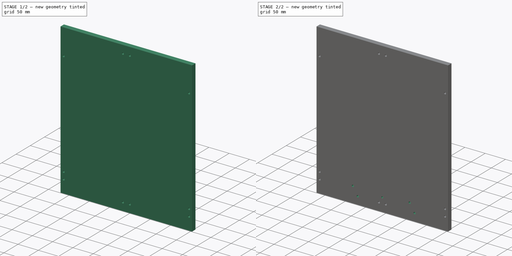
[diagram: build sequence overview — one tinted view per stage of 2, left to right]
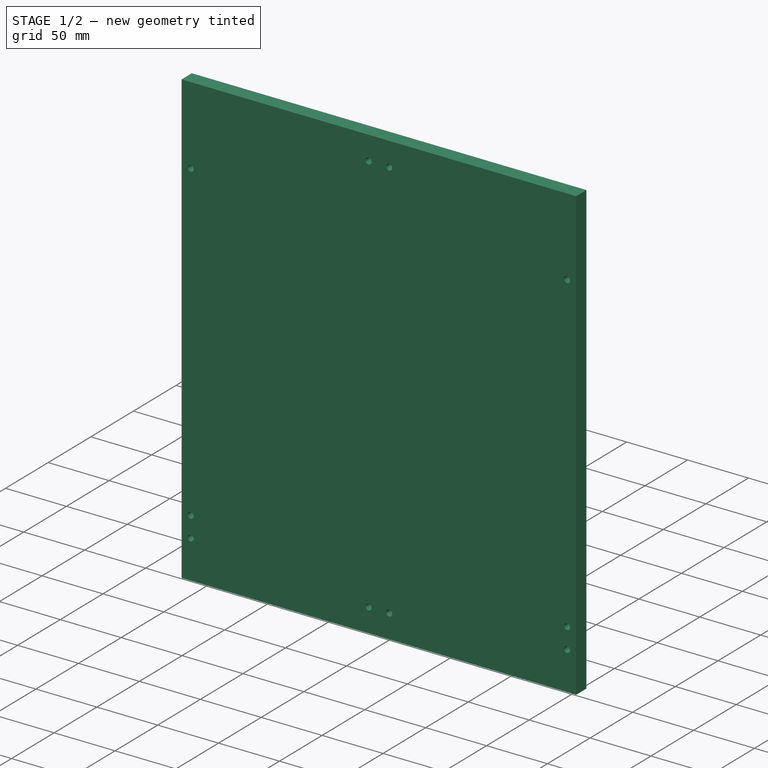
[diagram: stage 1 of 2 — iso view after this stage's code; geometry added in this stage tinted green]
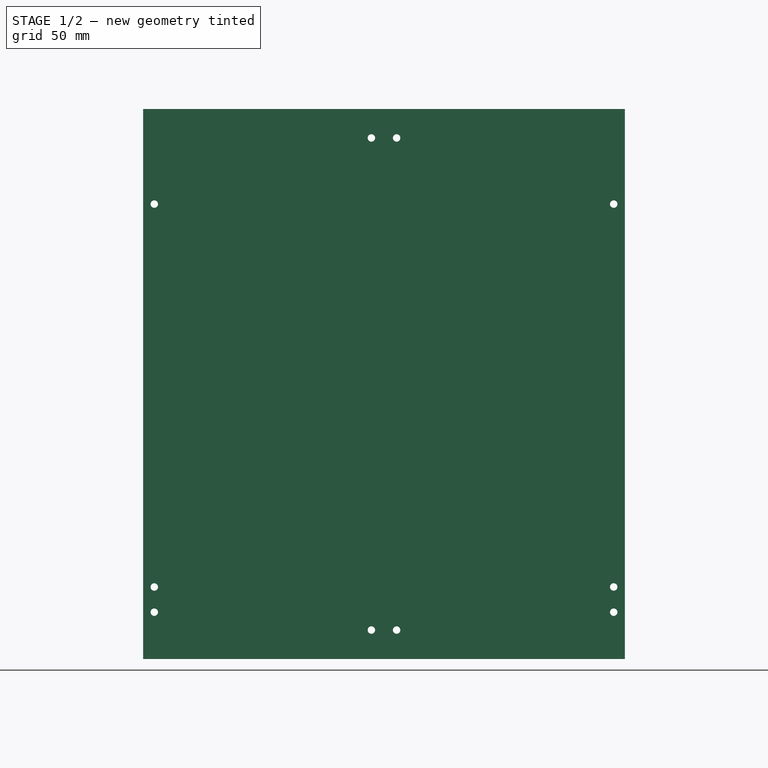
[diagram: stage 1 of 2 — front view after this stage's code; geometry added in this stage tinted green]
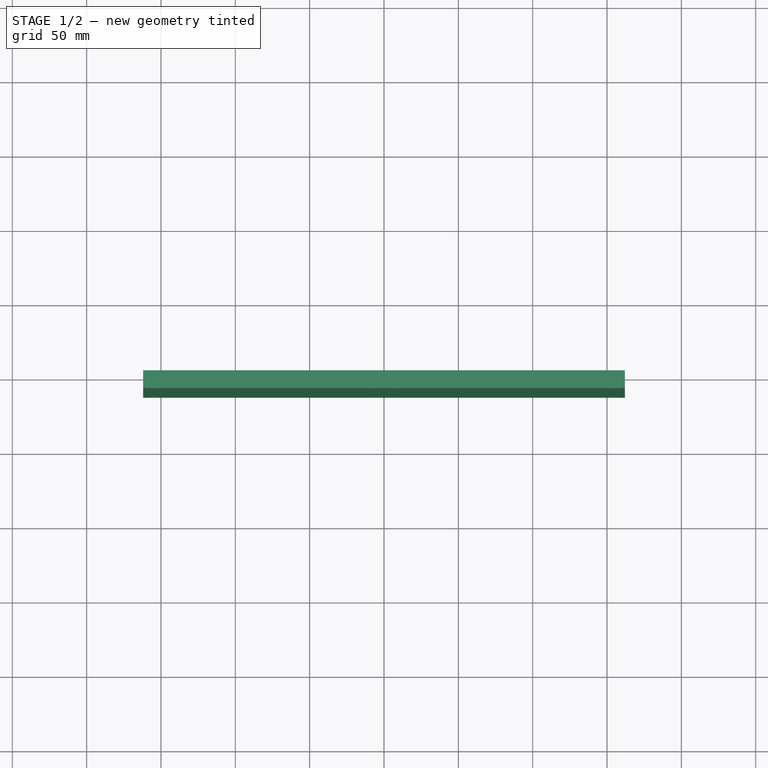
[diagram: stage 1 of 2 — top view after this stage's code; geometry added in this stage tinted green]
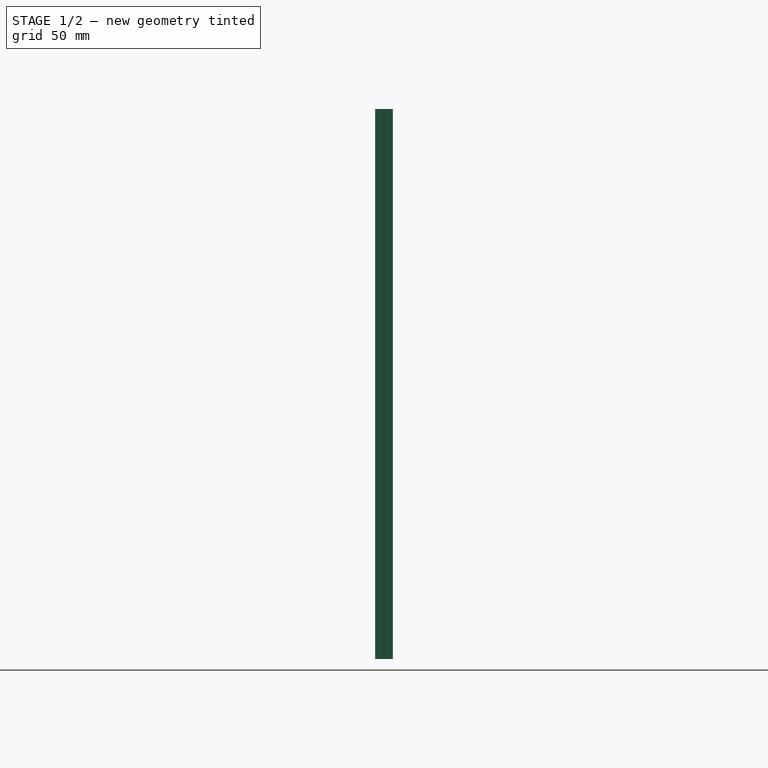
[diagram: stage 1 of 2 — right view after this stage's code; geometry added in this stage tinted green]
FCSTD DOCUMENT  (FreeCAD 0.15R4671 (Git))
Label: Gehaeuse - Rueckwand
License: All rights reserved
LicenseURL: http://de.wikipedia.org/wiki/Alle_Rechte_vorbehalten
objects: Drawing::FeatureView×18, Sketcher::SketchObject×3, PartDesign::Pocket×2, PartDesign::Pad×1, Drawing::FeatureViewPart×1, Drawing::FeaturePage×1
note: 9 computed .brp shape members not serialized (recipe doc carries the construction recipe); baked Part::Feature solids carry a one-line shape summary decoded from their .brp

FEATURE [Sketcher::SketchObject] Sketch
  Placement = pos=(0,0,0) rot=(1,0,0;1.5708rad)
  sketch-geometry (4):
    g0: LineSegment StartX=-162 StartY=370 StartZ=0 EndX=162 EndY=370 EndZ=0
    g1: LineSegment StartX=162 StartY=370 StartZ=0 EndX=162 EndY=0 EndZ=0
    g2: LineSegment StartX=162 StartY=0 StartZ=0 EndX=-162 EndY=0 EndZ=0
    g3: LineSegment StartX=-162 StartY=0 StartZ=0 EndX=-162 EndY=370 EndZ=0
  constraints (12):
    c: Coincident(g0,g1)
    c: Coincident(g1,g2)
    c: Coincident(g2,g3)
    c: Coincident(g3,g0)
    c: Horizontal(g0)
    c: Horizontal(g2)
    c: Vertical(g1)
    c: Vertical(g3)
    c: Symmetric(g1,g2,g-2)
    c: PointOnObject(g-1,g2)
    c: DistanceY(g1) = -370
    c: DistanceX(g0) = 324
FEATURE [PartDesign::Pad] Pad
  Length = 12
  Length2 = 100
  Placement = pos=(0,0,0) rot=(1,0,0;1.5708rad)
  Sketch = -> Sketch
  Type = 0
FEATURE [Sketcher::SketchObject] Sketch001
  ExternalGeometry = -> [Pad]
  Placement = pos=(0,-12,0) rot=(1,0,0;1.5708rad)
  Support = -> Pad [Face6]
  sketch-geometry (19):
    g0: LineSegment [constr] StartX=-154.5 StartY=306 StartZ=0 EndX=154.5 EndY=306 EndZ=0
    g1: LineSegment [constr] StartX=154.5 StartY=306 StartZ=0 EndX=154.5 EndY=31.525 EndZ=0
    g2: LineSegment [constr] StartX=154.5 StartY=31.525 StartZ=0 EndX=-154.5 EndY=31.525 EndZ=0
    g3: LineSegment [constr] StartX=-154.5 StartY=31.525 StartZ=0 EndX=-154.5 EndY=306 EndZ=0
    g4: LineSegment [constr] StartX=-8.475 StartY=350.5 StartZ=0 EndX=8.475 EndY=350.5 EndZ=0
    g5: LineSegment [constr] StartX=8.475 StartY=350.5 StartZ=0 EndX=8.475 EndY=19.5 EndZ=0
    g6: LineSegment [constr] StartX=8.475 StartY=19.5 StartZ=0 EndX=-8.475 EndY=19.5 EndZ=0
    g7: LineSegment [constr] StartX=-8.475 StartY=19.5 StartZ=0 EndX=-8.475 EndY=350.5 EndZ=0
    g8: LineSegment [constr] StartX=-154.5 StartY=48.475 StartZ=0 EndX=154.5 EndY=48.475 EndZ=0
    g9: Circle CenterX=-154.5 CenterY=31.525 CenterZ=0 NormalX=0 NormalY=0 NormalZ=1 Radius=2.5
    g10: Circle CenterX=-154.5 CenterY=48.475 CenterZ=0 NormalX=0 NormalY=0 NormalZ=1 Radius=2.5
    g11: Circle CenterX=-154.5 CenterY=306 CenterZ=0 NormalX=0 NormalY=0 NormalZ=1 Radius=2.5
    g12: Circle CenterX=-8.475 CenterY=350.5 CenterZ=0 NormalX=0 NormalY=0 NormalZ=1 Radius=2.5
    g13: Circle CenterX=8.475 CenterY=350.5 CenterZ=0 NormalX=0 NormalY=0 NormalZ=1 Radius=2.5
    g14: Circle CenterX=154.5 CenterY=306 CenterZ=0 NormalX=0 NormalY=0 NormalZ=1 Radius=2.5
    g15: Circle CenterX=154.5 CenterY=48.475 CenterZ=0 NormalX=0 NormalY=0 NormalZ=1 Radius=2.5
    g16: Circle CenterX=154.5 CenterY=31.525 CenterZ=0 NormalX=0 NormalY=0 NormalZ=1 Radius=2.5
    g17: Circle CenterX=8.475 CenterY=19.5 CenterZ=0 NormalX=0 NormalY=0 NormalZ=1 Radius=2.5
    g18: Circle CenterX=-8.475 CenterY=19.5 CenterZ=0 NormalX=0 NormalY=0 NormalZ=1 Radius=2.5
  constraints (48):
    c: Coincident(g0,g1)
    c: Coincident(g1,g2)
    c: Coincident(g2,g3)
    c: Coincident(g3,g0)
    c: Horizontal(g0)
    c: Horizontal(g2)
    c: Vertical(g1)
    c: Vertical(g3)
    c: Coincident(g4,g5)
    c: Coincident(g5,g6)
    c: Coincident(g6,g7)
    c: Coincident(g7,g4)
    c: Horizontal(g4)
    c: Horizontal(g6)
    c: Vertical(g5)
    c: Vertical(g7)
    c: Symmetric(g6,g5,g-2)
    c: Symmetric(g0,g0,g-2)
    c: DistanceX(g6,g-3) = -153.525
    c: DistanceX(g2,g-3) = -7.5
    c: DistanceY(g-3,g6) = 19.5
    c: DistanceY(g-3,g2) = 31.525
    c: PointOnObject(g8,g3)
    c: PointOnObject(g8,g1)
    c: Horizontal(g8)
    c: DistanceY(g-3,g8) = 48.475
    c: DistanceY(g0,g-3) = -306
    c: DistanceY(g-3,g4) = 350.5
    c: Coincident(g9,g2)
    c: Coincident(g10,g8)
    c: Coincident(g11,g0)
    c: Coincident(g12,g4)
    c: Coincident(g13,g4)
    c: Coincident(g14,g0)
    c: Coincident(g15,g8)
    c: Coincident(g16,g1)
    c: Coincident(g17,g5)
    c: Coincident(g18,g6)
    c: Radius(g9) = 2.5
    c: Equal(g9,g10)
    c: Equal(g9,g11)
    c: Equal(g9,g13)
    c: Equal(g9,g12)
    c: Equal(g9,g14)
    c: Equal(g9,g15)
    c: Equal(g9,g16)
    c: Equal(g9,g18)
    c: Equal(g9,g17)
FEATURE [PartDesign::Pocket] Pocket
  Length = 5
  Placement = pos=(0,0,0) rot=(1,0,0;1.5708rad)
  Sketch = -> Sketch001
  Type = 1
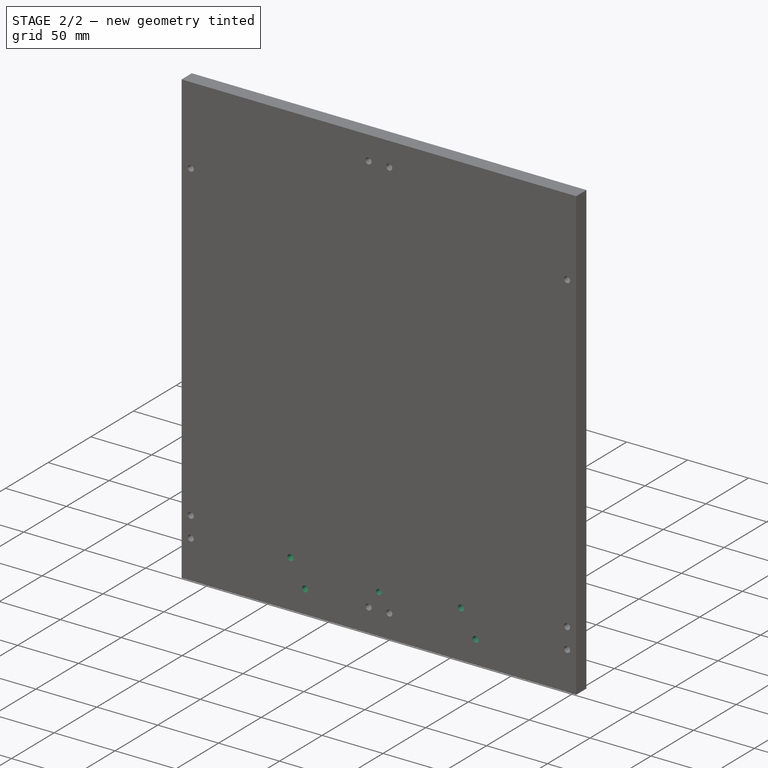
[diagram: stage 2 of 2 — iso view after this stage's code; geometry added in this stage tinted green]
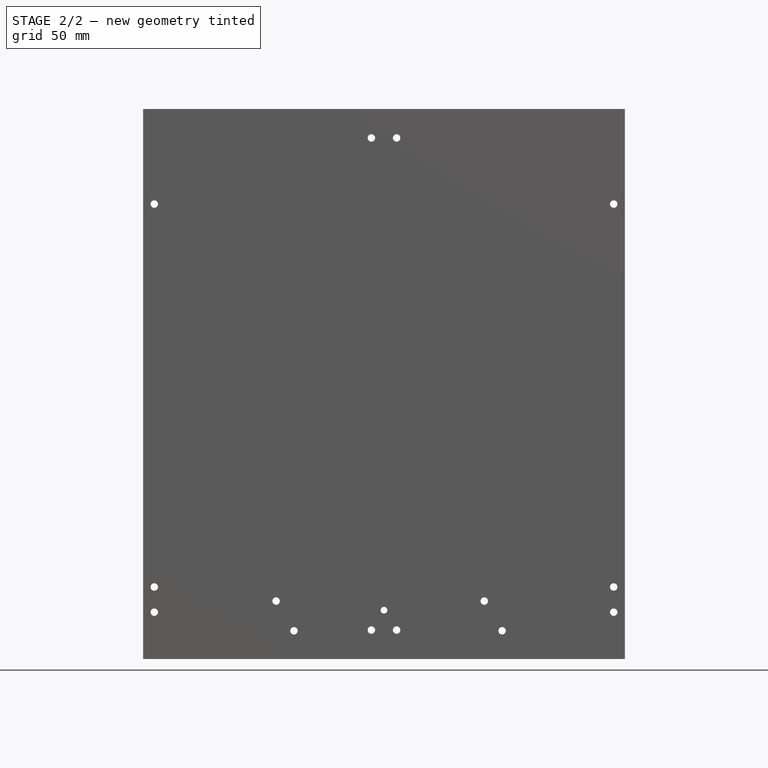
[diagram: stage 2 of 2 — front view after this stage's code; geometry added in this stage tinted green]
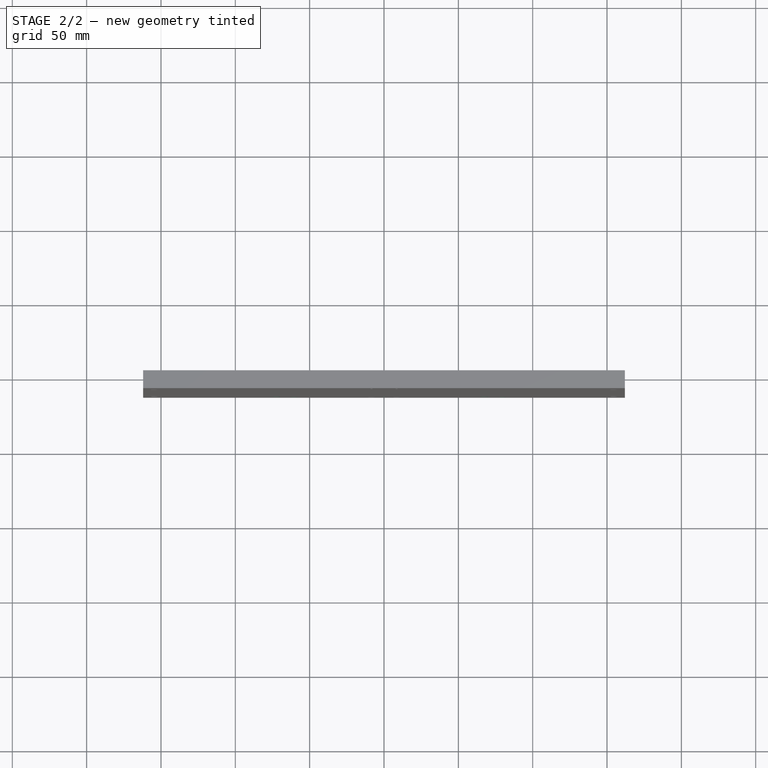
[diagram: stage 2 of 2 — top view after this stage's code; geometry added in this stage tinted green]
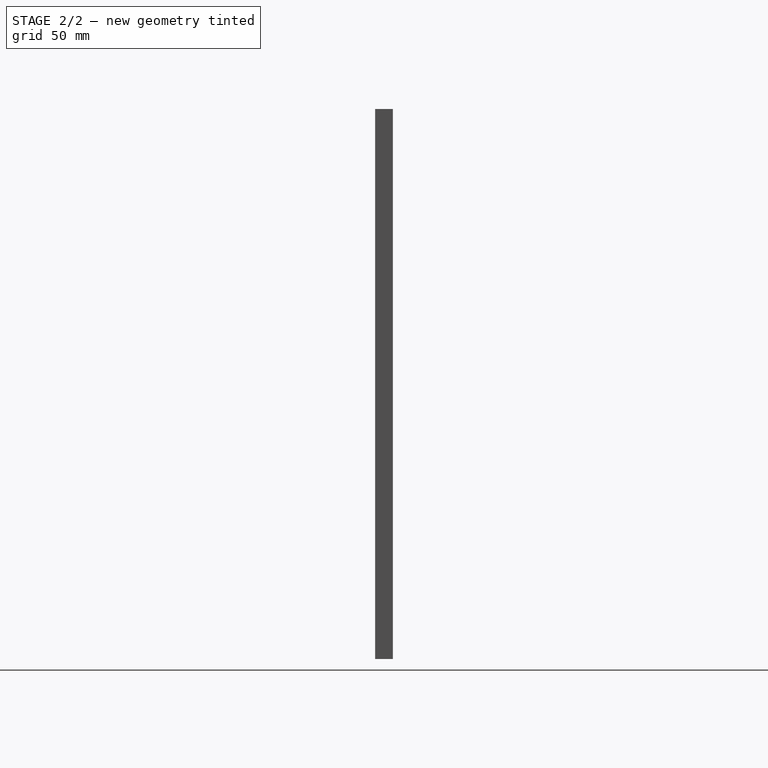
[diagram: stage 2 of 2 — right view after this stage's code; geometry added in this stage tinted green]
FEATURE [Sketcher::SketchObject] Sketch002
  ExternalGeometry = -> [Pocket]
  Placement = pos=(0,0,0) rot=(-1,0,0;1.5708rad)
  Support = -> Pocket [Face4]
  sketch-geometry (9):
    g0: LineSegment [constr] StartX=-72.55 StartY=-19 StartZ=0 EndX=79.45 EndY=-19 EndZ=0
    g1: LineSegment [constr] StartX=79.45 StartY=-19 StartZ=0 EndX=79.45 EndY=-39 EndZ=0
    g2: LineSegment [constr] StartX=79.45 StartY=-39 StartZ=0 EndX=-72.55 EndY=-39 EndZ=0
    g3: LineSegment [constr] StartX=-72.55 StartY=-39 StartZ=0 EndX=-72.55 EndY=-19 EndZ=0
    g4: Circle CenterX=-72.55 CenterY=-39 CenterZ=0 NormalX=0 NormalY=0 NormalZ=1 Radius=2.5
    g5: Circle CenterX=-60.55 CenterY=-19 CenterZ=0 NormalX=0 NormalY=0 NormalZ=1 Radius=2.5
    g6: Circle CenterX=79.45 CenterY=-19 CenterZ=0 NormalX=0 NormalY=0 NormalZ=1 Radius=2.5
    g7: Circle CenterX=67.45 CenterY=-39 CenterZ=0 NormalX=0 NormalY=0 NormalZ=1 Radius=2.5
    g8: Circle CenterX=0 CenterY=-32.85 CenterZ=0 NormalX=0 NormalY=0 NormalZ=1 Radius=2.25
  constraints (25):
    c: Coincident(g0,g1)
    c: Coincident(g1,g2)
    c: Coincident(g2,g3)
    c: Coincident(g3,g0)
    c: Horizontal(g0)
    c: Horizontal(g2)
    c: Vertical(g1)
    c: Vertical(g3)
    c: DistanceY(g0,g-3) = 19
    c: DistanceY(g-3,g1) = -39
    c: DistanceX(g0,g-3) = 82.55
    c: DistanceX(g-3,g0) = -234.55
    c: Coincident(g4,g2)
    c: PointOnObject(g5,g0)
    c: Coincident(g6,g0)
    c: PointOnObject(g7,g2)
    c: Radius(g4) = 2.5
    c: Equal(g4,g5)
    c: Equal(g4,g7)
    c: Equal(g4,g6)
    c: DistanceX(g5,g-3) = 222.55
    c: DistanceX(g7,g-3) = 94.55
    c: PointOnObject(g8,g-2)
    c: Radius(g8) = 2.25
    c: DistanceY(g8,g0) = 13.85
FEATURE [PartDesign::Pocket] Pocket001
  Length = 5
  Placement = pos=(0,0,0) rot=(1,0,0;1.5708rad)
  Sketch = -> Sketch002
  Type = 1
FEATURE [Drawing::FeatureViewPart] Ortho  label="Ortho_0_0"
  Direction = (0,-1,0)
  HiddenWidth = 0.15
  LineWidth = 0.35
  Rotation = 90
  ShowHiddenLines = false
  ShowSmoothLines = false
  Source = -> Pocket001
  Tolerance = 0.05
  ViewResult = <g id="Ortho_0_0"\n   transform="rotate(90,210,482) translate(210,482) scale(1,1)"\n  >\n<g   stroke="rgb(0, 0, 0)"\n   stroke-width="0.35"\n   stroke-linecap="butt"\n   stroke-linejoin="miter"\n   fill="none"\n   transform="scale(1,-1)"\n  >\n<path id= "1" d=" M -370 -162 L -370 162 " />\n<path id= "2" d=" M -1.59872e-014 -162 L -370 -162 " />\n<path id= "3" d=" M -370 162 L 0 162 " />\n<path id= "4" d=" M -1.59872e-014 162 L -1.59872e-014 -162 " />\n<circle cx ="-19" cy ="79.45" r ="2.5" /><circle cx ="-31.525" cy ="154.5" r ="2.5" /><circle cx ="-19.5" cy ="8.475" r ="2.5" /><circle cx ="-39" cy ="67.45" r ="2.5" /><circle cx ="-19.5" cy ="-8.475" r ="2.5" /><circle cx ="-32.85" cy ="0" r ="2.25" /><circle cx ="-48.475" cy ="154.5" r ="2.5" /><circle cx ="-350.5" cy ="-8.475" r ="2.5" /><circle cx ="-350.5" cy ="8.475" r ="2.5" /><circle cx ="-306" cy ="154.5" r ="2.5" /><circle cx ="-306" cy ="-154.5" r ="2.5" /><circle cx ="-19" cy ="-60.55" r ="2.5" /><circle cx ="-39" cy ="-72.55" r ="2.5" /><circle cx ="-48.475" cy ="-154.5" r ="2.5" /><circle cx ="-31.525" cy ="-154.5" r ="2.5" /></g>\n</g>
  Visible = true
  X = 210
  Y = 482
FEATURE [Drawing::FeatureView] centerLines001
  Rotation = 0
  ViewResult = <g transform="scale(1.000000,1.000000)" stroke="rgb(0,0,255)"  stroke-width="0.320000" > <path d="M 55.500000,176.000000 L 55.500000,173.000000 M 55.500000,171.000000 L 55.500000,168.639926 "/>\n<path d="M 55.500000,176.000000 L 58.500000,176.000000 "/>\n<path d="M 55.500000,176.000000 L 55.500000,179.000000 M 55.500000,181.000000 L 55.500000,181.823503 "/>\n<path d="M 55.500000,176.000000 L 52.500000,176.000000 "/> </g> 
  Visible = true
  X = 0
  Y = 0
FEATURE [Drawing::FeatureView] centerLines002
  Rotation = 0
  ViewResult = <g transform="scale(1.000000,1.000000)" stroke="rgb(0,0,255)"  stroke-width="0.320000" > <path d="M 201.525000,131.500000 L 201.525000,128.500000 M 201.525000,126.500000 L 201.525000,125.793300 "/>\n<path d="M 201.525000,131.500000 L 204.525000,131.500000 M 206.525000,131.500000 L 207.092026,131.500000 "/>\n<path d="M 201.525000,131.500000 L 201.525000,134.500000 M 201.525000,136.500000 L 201.525000,139.526193 "/>\n<path d="M 201.525000,131.500000 L 198.525000,131.500000 M 196.525000,131.500000 L 195.007080,131.500000 "/> </g> 
  Visible = true
  X = 0
  Y = 0
FEATURE [Drawing::FeatureView] centerLines003
  Rotation = 0
  ViewResult = <g transform="scale(1.000000,1.000000)" stroke="rgb(0,0,255)"  stroke-width="0.320000" > <path d="M 218.475000,131.500000 L 218.475000,128.500000 M 218.475000,126.500000 L 218.475000,125.243984 "/>\n<path d="M 218.475000,131.500000 L 221.475000,131.500000 M 223.475000,131.500000 L 224.670129,131.500000 "/>\n<path d="M 218.475000,131.500000 L 218.475000,134.500000 "/>\n<path d="M 218.475000,131.500000 L 215.475000,131.500000 M 213.475000,131.500000 L 210.387920,131.500000 "/> </g> 
  Visible = true
  X = 0
  Y = 0
FEATURE [Drawing::FeatureView] centerLines004
  Rotation = 0
  ViewResult = <g transform="scale(1.000000,1.000000)" stroke="rgb(0,0,255)"  stroke-width="0.320000" > <path d="M 364.500000,176.000000 L 364.500000,173.000000 M 364.500000,171.000000 L 364.500000,168.090610 "/>\n<path d="M 364.500000,176.000000 L 367.500000,176.000000 M 369.500000,176.000000 L 370.238794,176.000000 "/>\n<path d="M 364.500000,176.000000 L 364.500000,179.000000 M 364.500000,181.000000 L 364.500000,185.668713 "/>\n<path d="M 364.500000,176.000000 L 361.500000,176.000000 M 359.500000,176.000000 L 358.153848,176.000000 "/> </g> 
  Visible = true
  X = 0
  Y = 0
FEATURE [Drawing::FeatureView] centerLines005
  Rotation = 0
  ViewResult = <g transform="scale(1.000000,1.000000)" stroke="rgb(0,0,255)"  stroke-width="0.320000" > <path d="M 364.500000,433.525000 L 364.500000,430.525000 M 364.500000,428.525000 L 364.500000,426.818313 "/>\n<path d="M 364.500000,433.525000 L 367.500000,433.525000 M 369.500000,433.525000 L 369.689479,433.525000 "/>\n<path d="M 364.500000,433.525000 L 364.500000,436.525000 M 364.500000,438.525000 L 364.500000,441.100522 "/>\n<path d="M 364.500000,433.525000 L 361.500000,433.525000 M 359.500000,433.525000 L 359.252480,433.525000 "/> </g> 
  Visible = true
  X = 0
  Y = 0
FEATURE [Drawing::FeatureView] centerLines006
  Rotation = 0
  ViewResult = <g transform="scale(1.000000,1.000000)" stroke="rgb(0,0,255)"  stroke-width="0.320000" > <path d="M 364.500000,450.475000 L 364.500000,447.475000 M 364.500000,445.475000 L 364.500000,444.396416 "/>\n<path d="M 364.500000,450.475000 L 367.500000,450.475000 M 369.500000,450.475000 L 369.689479,450.475000 "/>\n<path d="M 364.500000,450.475000 L 364.500000,453.475000 M 364.500000,455.475000 L 364.500000,457.579994 "/>\n<path d="M 364.500000,450.475000 L 361.500000,450.475000 M 359.500000,450.475000 L 358.153848,450.475000 "/> </g> 
  Visible = true
  X = 0
  Y = 0
FEATURE [Drawing::FeatureView] centerLines007
  Rotation = 0
  ViewResult = <g transform="scale(1.000000,1.000000)" stroke="rgb(0,0,255)"  stroke-width="0.320000" > <path d="M 289.450000,463.000000 L 289.450000,460.000000 M 289.450000,458.000000 L 289.450000,454.284099 "/>\n<path d="M 289.450000,463.000000 L 292.450000,463.000000 M 294.450000,463.000000 L 297.179804,463.000000 "/>\n<path d="M 289.450000,463.000000 L 289.450000,466.000000 M 289.450000,468.000000 L 289.450000,469.664939 "/>\n<path d="M 289.450000,463.000000 L 286.450000,463.000000 M 284.450000,463.000000 L 281.798964,463.000000 "/> </g> 
  Visible = true
  X = 0
  Y = 0
FEATURE [Drawing::FeatureView] centerLines008
  Rotation = 0
  ViewResult = <g transform="scale(1.000000,1.000000)" stroke="rgb(0,0,255)"  stroke-width="0.320000" > <path d="M 277.450000,443.000000 L 277.450000,440.000000 M 277.450000,438.000000 L 277.450000,434.508733 "/>\n<path d="M 277.450000,443.000000 L 280.450000,443.000000 M 282.450000,443.000000 L 286.742805,443.000000 "/>\n<path d="M 277.450000,443.000000 L 277.450000,446.000000 M 277.450000,448.000000 L 277.450000,451.537521 "/>\n<path d="M 277.450000,443.000000 L 274.450000,443.000000 M 272.450000,443.000000 L 269.714018,443.000000 "/> </g> 
  Visible = true
  X = 0
  Y = 0
FEATURE [Drawing::FeatureView] centerLines009
  Rotation = 0
  ViewResult = <g transform="scale(1.000000,1.000000)" stroke="rgb(0,0,255)"  stroke-width="0.320000" > <path d="M 218.475000,462.500000 L 218.475000,459.500000 M 218.475000,457.500000 L 218.475000,455.932046 "/>\n<path d="M 218.475000,462.500000 L 221.475000,462.500000 M 223.475000,462.500000 L 229.475000,462.500000 M 231.475000,462.500000 L 231.811233,462.500000 "/>\n<path d="M 218.475000,462.500000 L 218.475000,465.500000 M 218.475000,467.500000 L 218.475000,471.862202 "/>\n<path d="M 218.475000,462.500000 L 215.475000,462.500000 M 213.475000,462.500000 L 208.739973,462.500000 "/> </g> 
  Visible = true
  X = 0
  Y = 0
FEATURE [Drawing::FeatureView] centerLines010
  Rotation = 0
  ViewResult = <g transform="scale(1.000000,1.000000)" stroke="rgb(0,0,255)"  stroke-width="0.320000" > <path d="M 201.525000,462.500000 L 201.525000,459.500000 M 201.525000,457.500000 L 201.525000,457.030678 "/>\n<path d="M 201.525000,462.500000 L 204.525000,462.500000 M 206.525000,462.500000 L 209.838604,462.500000 "/>\n<path d="M 201.525000,462.500000 L 201.525000,465.500000 M 201.525000,467.500000 L 201.525000,471.862202 "/>\n<path d="M 201.525000,462.500000 L 198.525000,462.500000 M 196.525000,462.500000 L 195.007080,462.500000 "/> </g> 
  Visible = true
  X = 0
  Y = 0
FEATURE [Drawing::FeatureView] centerLines011
  Rotation = 0
  ViewResult = <g transform="scale(1.000000,1.000000)" stroke="rgb(0,0,255)"  stroke-width="0.320000" > <path d="M 210.000000,449.150000 L 210.000000,446.150000 M 210.000000,444.150000 L 210.000000,442.748469 "/>\n<path d="M 210.000000,449.150000 L 213.000000,449.150000 M 215.000000,449.150000 L 217.529025,449.150000 "/>\n<path d="M 210.000000,449.150000 L 210.000000,452.150000 M 210.000000,454.150000 L 210.000000,455.932046 "/>\n<path d="M 210.000000,449.150000 L 207.000000,449.150000 M 205.000000,449.150000 L 203.246816,449.150000 "/> </g> 
  Visible = true
  X = 0
  Y = 0
FEATURE [Drawing::FeatureView] centerLines012
  Rotation = 0
  ViewResult = <g transform="scale(1.000000,1.000000)" stroke="rgb(0,0,255)"  stroke-width="0.320000" > <path d="M 149.450000,463.000000 L 149.450000,460.000000 M 149.450000,458.000000 L 149.450000,457.030678 "/>\n<path d="M 149.450000,463.000000 L 152.450000,463.000000 M 154.450000,463.000000 L 157.653611,463.000000 "/>\n<path d="M 149.450000,463.000000 L 149.450000,466.000000 M 149.450000,468.000000 L 149.450000,471.862202 "/>\n<path d="M 149.450000,463.000000 L 146.450000,463.000000 M 144.450000,463.000000 L 141.723455,463.000000 "/> </g> 
  Visible = true
  X = 0
  Y = 0
FEATURE [Drawing::FeatureView] centerLines013
  Rotation = 0
  ViewResult = <g transform="scale(1.000000,1.000000)" stroke="rgb(0,0,255)"  stroke-width="0.320000" > <path d="M 137.450000,443.000000 L 137.450000,440.000000 M 137.450000,438.000000 L 137.450000,434.508733 "/>\n<path d="M 137.450000,443.000000 L 140.450000,443.000000 M 142.450000,443.000000 L 145.568665,443.000000 "/>\n<path d="M 137.450000,443.000000 L 137.450000,446.000000 M 137.450000,448.000000 L 137.450000,451.537521 "/>\n<path d="M 137.450000,443.000000 L 134.450000,443.000000 M 132.450000,443.000000 L 130.737141,443.000000 "/> </g> 
  Visible = true
  X = 0
  Y = 0
FEATURE [Drawing::FeatureView] centerLines014
  Rotation = 0
  ViewResult = <g transform="scale(1.000000,1.000000)" stroke="rgb(0,0,255)"  stroke-width="0.320000" > <path d="M 55.500000,450.475000 L 55.500000,447.475000 M 55.500000,445.475000 L 55.500000,443.847101 "/>\n<path d="M 55.500000,450.475000 L 58.500000,450.475000 M 60.500000,450.475000 L 61.523360,450.475000 "/>\n<path d="M 55.500000,450.475000 L 55.500000,453.475000 M 55.500000,455.475000 L 55.500000,457.030678 "/>\n<path d="M 55.500000,450.475000 L 52.500000,450.475000 M 50.500000,450.475000 L 48.339783,450.475000 "/> </g> 
  Visible = true
  X = 0
  Y = 0
FEATURE [Drawing::FeatureView] centerLines015
  Rotation = 0
  ViewResult = <g transform="scale(1.000000,1.000000)" stroke="rgb(0,0,255)"  stroke-width="0.320000" > <path d="M 55.500000,433.525000 L 55.500000,430.525000 M 55.500000,428.525000 L 55.500000,426.268998 "/>\n<path d="M 55.500000,433.525000 L 58.500000,433.525000 M 60.500000,433.525000 L 62.072676,433.525000 "/>\n<path d="M 55.500000,433.525000 L 55.500000,436.525000 M 55.500000,438.525000 L 55.500000,438.903259 "/>\n<path d="M 55.500000,433.525000 L 52.500000,433.525000 M 50.500000,433.525000 L 49.987730,433.525000 "/> </g> 
  Visible = true
  X = 0
  Y = 0
FEATURE [Drawing::FeatureView] dim001
  Rotation = 0
  ViewResult = <g>  <circle cx ="137.450000" cy ="443.000000" r="0.250000" stroke="none" fill="rgb(0,0,255)" /> \n<line x1="129.089194" y1="433.959418" x2="139.147415" y2="444.835424" style="stroke:rgb(0,0,255);stroke-width:0.50" />\n<polygon points="135.752585,441.164576 134.449856,438.283101 133.036720,438.227898 132.981517,439.641034" style="fill:rgb(0,0,255);stroke:rgb(0,0,255);stroke-width:0" />\n<polygon points="139.147415,444.835424 140.450144,447.716899 141.863280,447.772102 141.918483,446.358966" style="fill:rgb(0,0,255);stroke:rgb(0,0,255);stroke-width:0" />\n<line x1="129.089194" y1="433.959418" x2="116.454932" y2="433.959418" style="stroke:rgb(0,0,255);stroke-width:0.50" />\n<text x="122.772063" y="431.959418" font-family="inherit" font-size="3.6" fill="rgb(0,0,255)" text-anchor="middle" transform="rotate(0.000000 122.772063,431.959418)" >Ø5</text> </g>
  Visible = true
  X = 0
  Y = 0
FEATURE [Drawing::FeatureView] dim002
  Rotation = 0
  ViewResult = <g>  <circle cx ="210.000000" cy ="449.150000" r="0.250000" stroke="none" fill="rgb(0,0,255)" /> \n<line x1="201.049553" y1="441.649838" x2="211.724563" y2="450.595124" style="stroke:rgb(0,0,255);stroke-width:0.50" />\n<polygon points="208.275437,447.704876 206.618297,445.011572 205.209547,445.135768 205.333742,446.544517" style="fill:rgb(0,0,255);stroke:rgb(0,0,255);stroke-width:0" />\n<polygon points="211.724563,450.595124 213.381703,453.288428 214.790453,453.164232 214.666258,451.755483" style="fill:rgb(0,0,255);stroke:rgb(0,0,255);stroke-width:0" />\n<line x1="201.049553" y1="441.649838" x2="190.612554" y2="441.649838" style="stroke:rgb(0,0,255);stroke-width:0.50" />\n<text x="195.831054" y="439.649838" font-family="inherit" font-size="3.6" fill="rgb(0,0,255)" text-anchor="middle" transform="rotate(0.000000 195.831054,439.649838)" >Ø4.5</text> </g>
  Visible = true
  X = 0
  Y = 0
FEATURE [Drawing::FeatureView] dim003
  Rotation = 0
  ViewResult = <g>  <circle cx ="201.525000" cy ="462.500000" r="0.250000" stroke="none" fill="rgb(0,0,255)" /> \n<line x1="190.063239" y1="452.086836" x2="203.375382" y2="464.181097" style="stroke:rgb(0,0,255);stroke-width:0.50" />\n<polygon points="199.674618,460.818903 198.126598,458.061434 196.714007,458.129148 196.781721,459.541740" style="fill:rgb(0,0,255);stroke:rgb(0,0,255);stroke-width:0" />\n<polygon points="203.375382,464.181097 204.923402,466.938566 206.335993,466.870852 206.268279,465.458260" style="fill:rgb(0,0,255);stroke:rgb(0,0,255);stroke-width:0" />\n<line x1="190.063239" y1="452.086836" x2="180.175556" y2="452.086836" style="stroke:rgb(0,0,255);stroke-width:0.50" />\n<text x="185.119397" y="450.086836" font-family="inherit" font-size="3.6" fill="rgb(0,0,255)" text-anchor="middle" transform="rotate(0.000000 185.119397,450.086836)" >Ø5</text> </g>
  Visible = true
  X = 0
  Y = 0
FEATURE [Drawing::FeaturePage] Page
  Group = -> [Ortho,centerLines001,centerLines002,centerLines003,centerLines004,centerLines005,centerLines006,centerLines007,centerLines008,centerLines009,centerLines010,centerLines011,centerLines012,centerLines013,centerLines014,centerLines015,dim001,dim002,dim003]
  Template = C:/Program Files/FreeCAD 0.15/data/Mod/Drawing/Templates/A2_Portrait_plain.svg
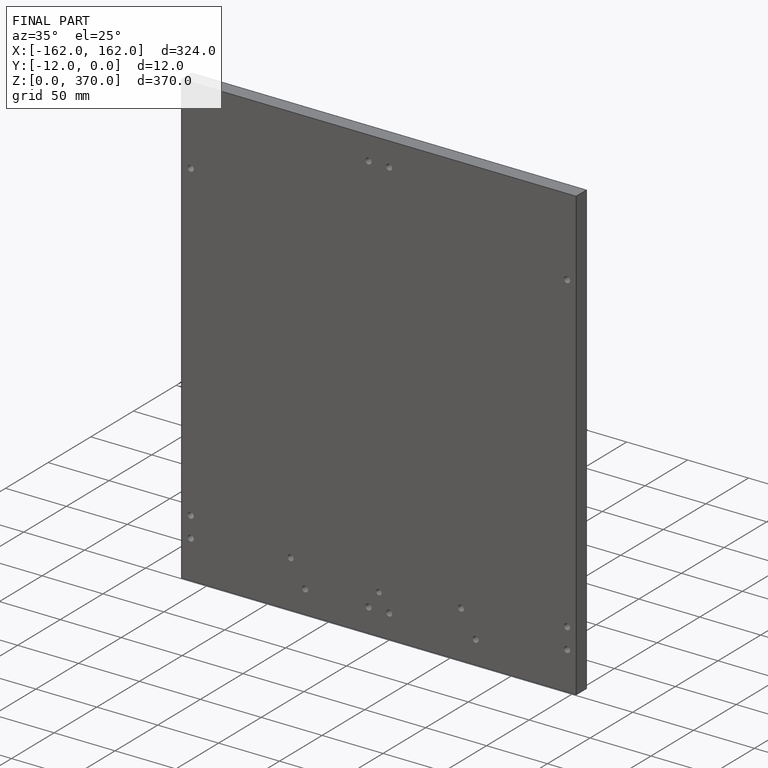
[diagram: finished part — iso view with bounding-box wireframe]
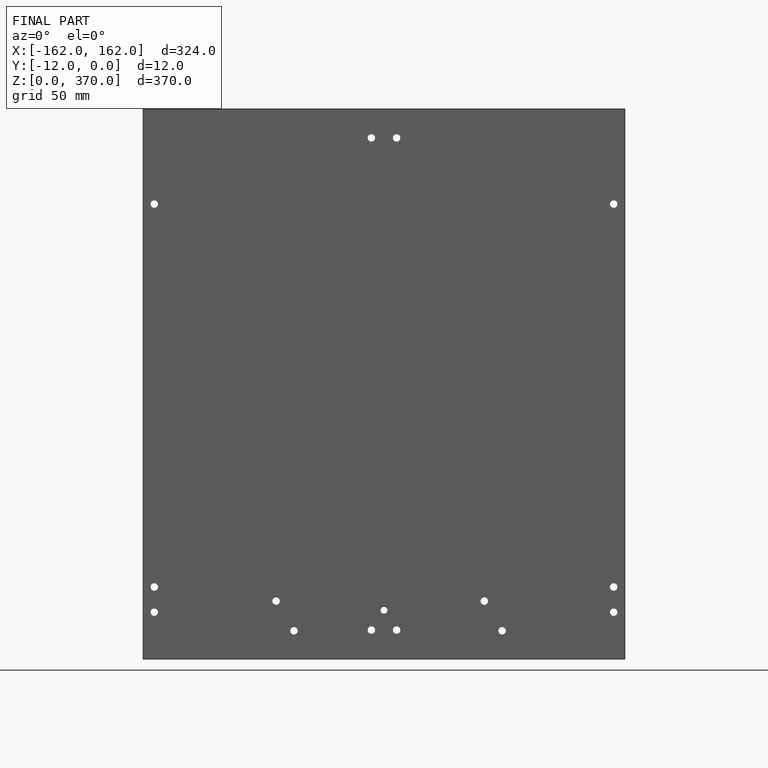
[diagram: finished part — front view with bounding-box wireframe]
